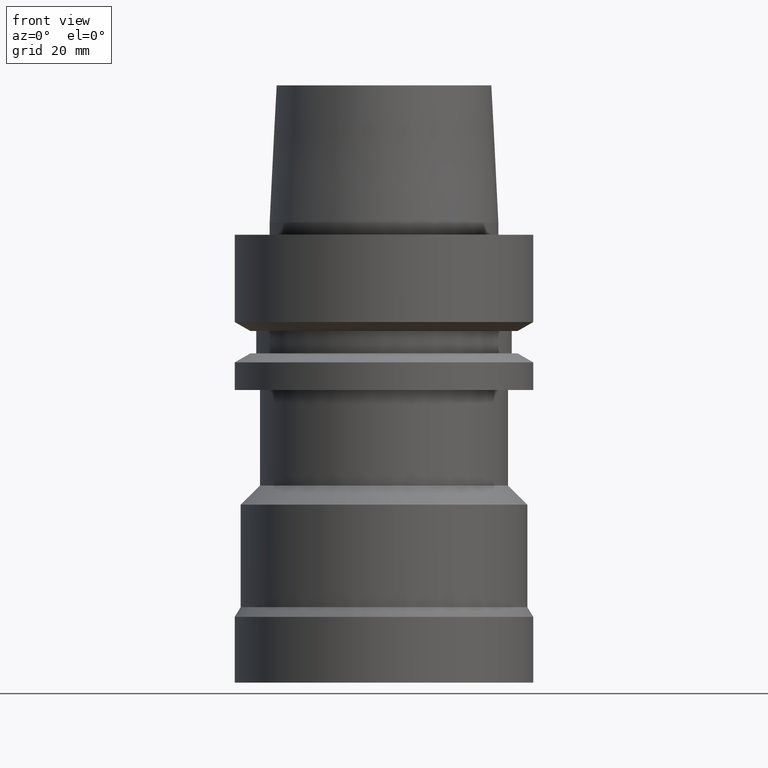
[diagram: clean part render]
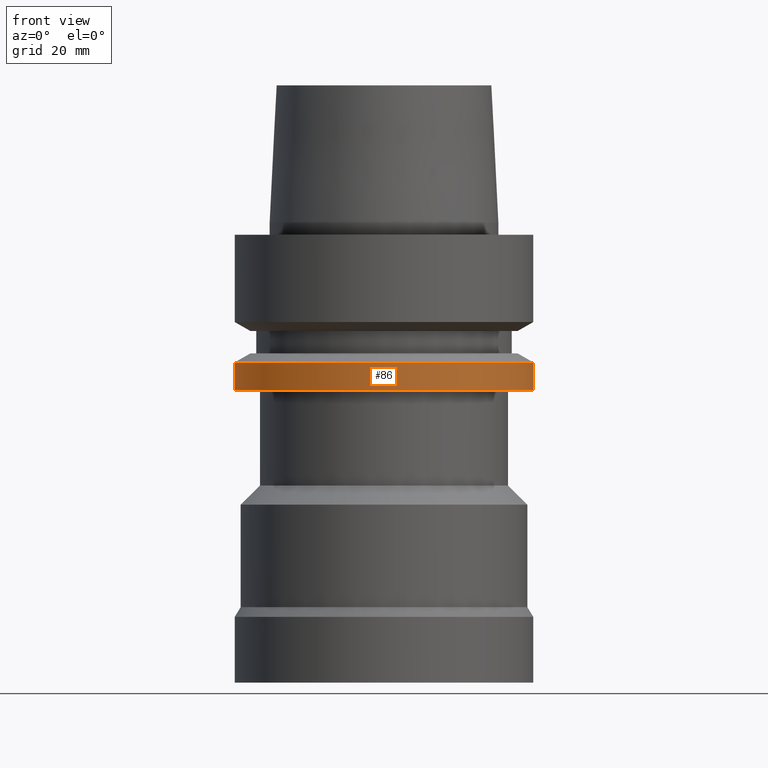
[diagram: same view with one face highlighted and labeled with its STEP entity id]
A machine part, front view. The second image highlights one B-rep face of the part: STEP entity #86.
In plain terms, the highlighted cylindrical surface (bore or boss wall) has radius 25 mm, axis along (-0, -0, 1).
Its self-contained STEP definition (entity closure, byte-faithful):
#86=ADVANCED_FACE('',(#125,#126),#127,.T.);
#125=FACE_BOUND('',#177,.T.);
#126=FACE_BOUND('',#178,.T.);
#127=CYLINDRICAL_SURFACE('',#179,25.0);
#177=EDGE_LOOP('',(#251));
#178=EDGE_LOOP('',(#252));
#179=AXIS2_PLACEMENT_3D('',#253,#254,#255);
#251=ORIENTED_EDGE('',*,*,#297,.F.);
#252=ORIENTED_EDGE('',*,*,#296,.T.);
#253=CARTESIAN_POINT('',(1.45051756469206E-015,2.90103512938411E-015,-23.688749535));
#254=DIRECTION('',(-6.12323399573677E-017,-1.22464679914735E-016,1.0));
#255=DIRECTION('',(-1.23259516440783E-032,1.0,1.22464679914735E-016));
#296=EDGE_CURVE('',#323,#323,#324,.T.);
#297=EDGE_CURVE('',#325,#325,#326,.T.);
#323=VERTEX_POINT('',#357);
#324=CIRCLE('',#358,25.0);
#325=VERTEX_POINT('',#359);
#326=CIRCLE('',#360,25.0);
#357=CARTESIAN_POINT('',(1.30899429049255E-015,25.0,-21.37749907));
#358=AXIS2_PLACEMENT_3D('',#401,#402,#403);
#359=CARTESIAN_POINT('',(1.59204083889156E-015,25.0,-26.0));
#360=AXIS2_PLACEMENT_3D('',#404,#405,#406);
#401=CARTESIAN_POINT('',(1.30899429049255E-015,2.6179885809851E-015,-21.37749907));
#402=DIRECTION('',(6.12323399573677E-017,1.22464679914735E-016,-1.0));
#403=DIRECTION('',(-1.23259516440783E-032,1.0,1.22464679914735E-016));
#404=CARTESIAN_POINT('',(1.59204083889156E-015,3.18408167778312E-015,-26.0));
#405=DIRECTION('',(6.12323399573677E-017,1.22464679914735E-016,-1.0));
#406=DIRECTION('',(-1.23259516440783E-032,1.0,1.22464679914735E-016));